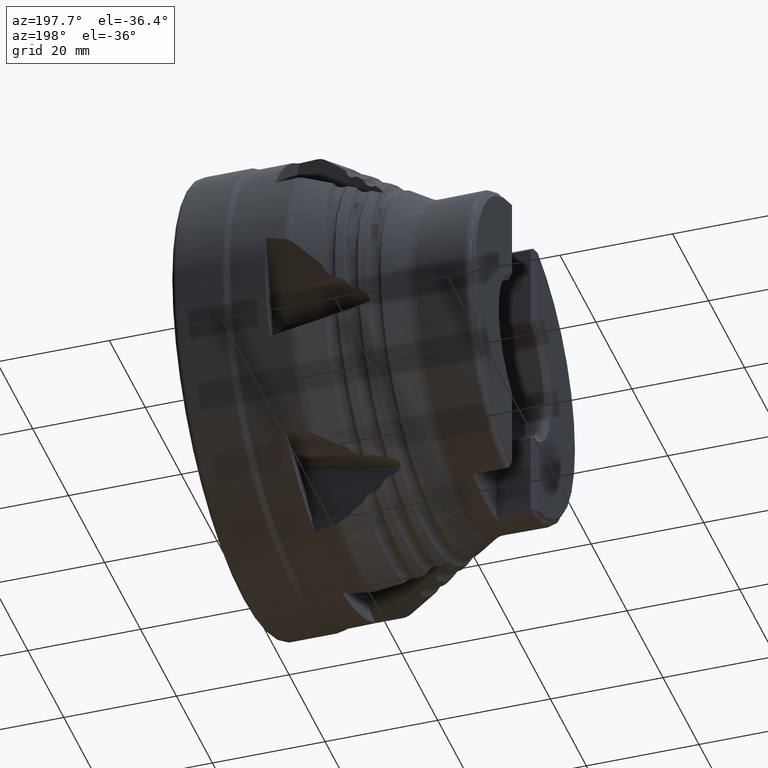
[diagram: clean part render]
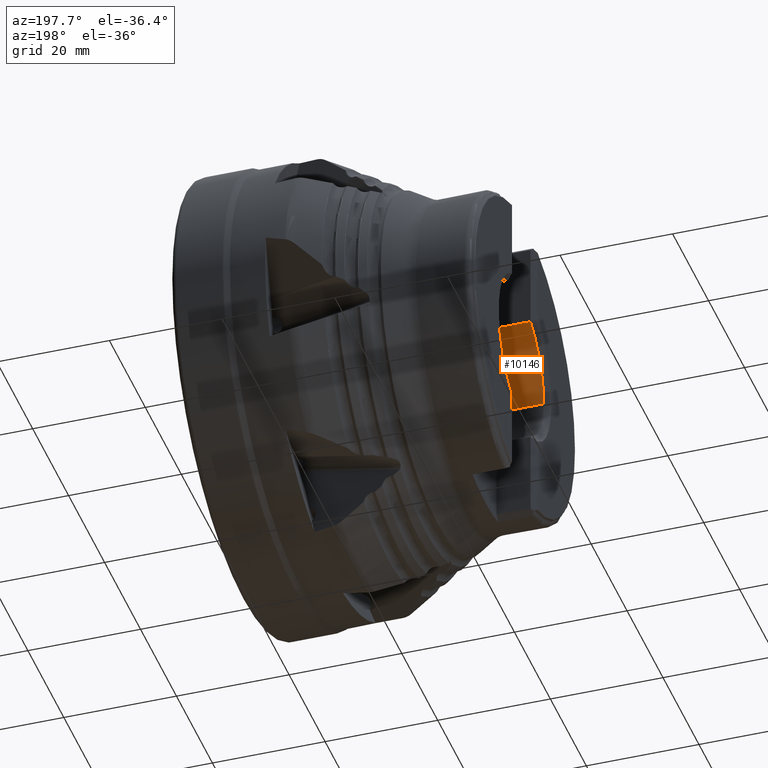
[diagram: same view with one face highlighted and labeled with its STEP entity id]
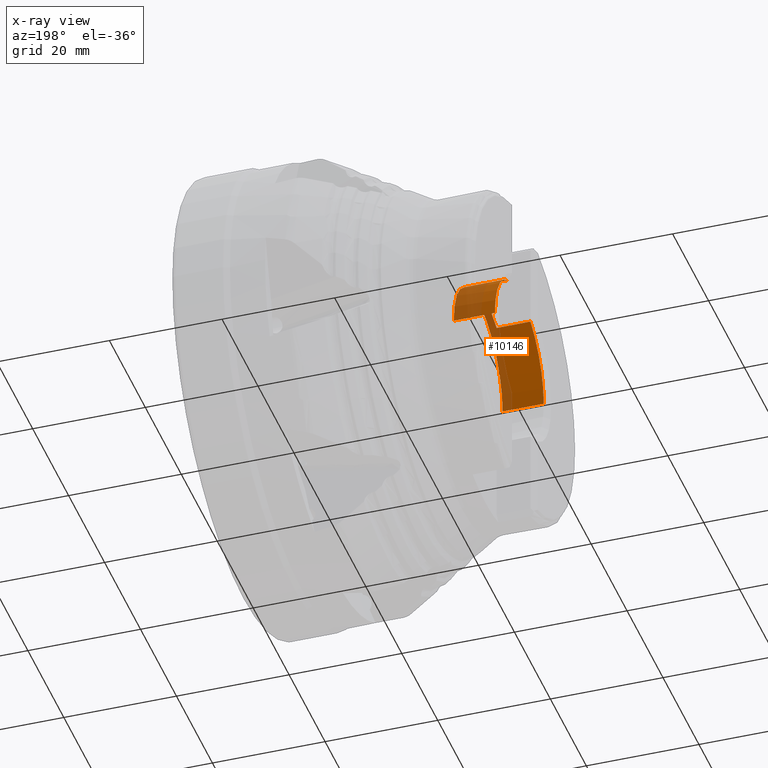
[diagram: x-ray of the same camera — body ghosted, the highlighted face saturated]
A machine part, auxiliary view. The second image highlights one B-rep face of the part: STEP entity #10146.
The next image is the same camera in x-ray: the body ghosted, the highlighted face saturated — about 35% of this face is hidden behind the body in this view.
In plain terms, the highlighted cylindrical surface (partial cylindrical patch) has radius 13.575 mm, axis along (1, 0, -0).
Its self-contained STEP definition (entity closure, byte-faithful):
#294 = DIRECTION ( 'NONE',  ( -1.224606353822377300E-016, 1.000000000000000000, 0.0000000000000000000 ) ) ;
#303 = DIRECTION ( 'NONE',  ( 1.000000000000000000, 1.224606353822377300E-016, -0.0000000000000000000 ) ) ;
#304 = CARTESIAN_POINT ( 'NONE',  ( 0.0000000000000000000, 0.0000000000000000000, 0.0000000000000000000 ) ) ;
#1101 = CARTESIAN_POINT ( 'NONE',  ( -1.662403125313877100E-015, 13.57499999999999900, 0.0000000000000000000 ) ) ;
#1128 = DIRECTION ( 'NONE',  ( 1.000000000000000000, 1.224606353822377300E-016, -0.0000000000000000000 ) ) ;
#1133 = CARTESIAN_POINT ( 'NONE',  ( -47.24999999999995700, -5.786265021810727800E-015, 0.0000000000000000000 ) ) ;
#1144 = DIRECTION ( 'NONE',  ( 0.0000000000000000000, 1.000000000000000000, 0.0000000000000000000 ) ) ;
#1169 = DIRECTION ( 'NONE',  ( 1.000000000000000000, 1.224606353822377300E-016, -0.0000000000000000000 ) ) ;
#1192 = DIRECTION ( 'NONE',  ( 1.000000000000000000, 1.224606353822377300E-016, -0.0000000000000000000 ) ) ;
#1199 = CARTESIAN_POINT ( 'NONE',  ( 1.662403125313877100E-015, -13.57499999999999900, 1.662458029842531900E-015 ) ) ;
#2307 = VERTEX_POINT ( 'NONE', #2373 ) ;
#2352 = VERTEX_POINT ( 'NONE', #2398 ) ;
#2373 = CARTESIAN_POINT ( 'NONE',  ( -47.24999999999995700, -6.200000000000002000, 12.07644918839970800 ) ) ;
#2398 = CARTESIAN_POINT ( 'NONE',  ( -39.94999999999996000, -13.57500000000000300, 1.662458029842531900E-015 ) ) ;
#4784 = EDGE_LOOP ( 'NONE', ( #6269, #6318, #6294, #6152, #6217, #6183, #6295, #6360 ) ) ;
#4964 = VECTOR ( 'NONE', #1169, 1000.000000000000000 ) ;
#4972 = VECTOR ( 'NONE', #1128, 1000.000000000000000 ) ;
#4975 = LINE ( 'NONE', #1199, #4972 ) ;
#4978 = LINE ( 'NONE', #1101, #4964 ) ;
#4989 = CIRCLE ( 'NONE', #8004, 13.57499999999999900 ) ;
#5830 = AXIS2_PLACEMENT_3D ( 'NONE', #12097, #12098, #12099 ) ;
#5837 = AXIS2_PLACEMENT_3D ( 'NONE', #12160, #12161, #12162 ) ;
#5838 = AXIS2_PLACEMENT_3D ( 'NONE', #12194, #12198, #12199 ) ;
#5993 = AXIS2_PLACEMENT_3D ( 'NONE', #304, #303, #294 ) ;
#6152 = ORIENTED_EDGE ( 'NONE', *, *, #9850, .T. ) ;
#6183 = ORIENTED_EDGE ( 'NONE', *, *, #9833, .F. ) ;
#6217 = ORIENTED_EDGE ( 'NONE', *, *, #9855, .T. ) ;
#6269 = ORIENTED_EDGE ( 'NONE', *, *, #7511, .F. ) ;
#6294 = ORIENTED_EDGE ( 'NONE', *, *, #9860, .T. ) ;
#6295 = ORIENTED_EDGE ( 'NONE', *, *, #7513, .T. ) ;
#6318 = ORIENTED_EDGE ( 'NONE', *, *, #7519, .F. ) ;
#6360 = ORIENTED_EDGE ( 'NONE', *, *, #9861, .T. ) ;
#6429 = CARTESIAN_POINT ( 'NONE',  ( -41.25000000000008500, 6.200000000000002000, 12.07644918839970300 ) ) ;
#6471 = CARTESIAN_POINT ( 'NONE',  ( -41.25000000000008500, -6.200000000000001100, 12.07644918839970800 ) ) ;
#6523 = CARTESIAN_POINT ( 'NONE',  ( -39.94999999999996000, 13.57499999999999400, 0.0000000000000000000 ) ) ;
#6549 = CARTESIAN_POINT ( 'NONE',  ( -47.24999999999995700, -13.57500000000000300, 0.0000000000000000000 ) ) ;
#6554 = CARTESIAN_POINT ( 'NONE',  ( -47.24999999999995700, 13.57499999999999400, 0.0000000000000000000 ) ) ;
#6800 = CARTESIAN_POINT ( 'NONE',  ( -47.24999999999995700, 6.200000000000002000, 12.07644918839970300 ) ) ;
#7011 = VERTEX_POINT ( 'NONE', #6471 ) ;
#7062 = VERTEX_POINT ( 'NONE', #6800 ) ;
#7065 = VERTEX_POINT ( 'NONE', #6429 ) ;
#7253 = VERTEX_POINT ( 'NONE', #6523 ) ;
#7271 = VERTEX_POINT ( 'NONE', #6549 ) ;
#7275 = VERTEX_POINT ( 'NONE', #6554 ) ;
#7511 = EDGE_CURVE ( 'NONE', #7271, #2352, #4975, .T. ) ;
#7513 = EDGE_CURVE ( 'NONE', #7275, #7253, #4978, .T. ) ;
#7519 = EDGE_CURVE ( 'NONE', #2307, #7271, #4989, .T. ) ;
#8004 = AXIS2_PLACEMENT_3D ( 'NONE', #1133, #1192, #1144 ) ;
#9833 = EDGE_CURVE ( 'NONE', #7275, #7062, #10998, .T. ) ;
#9850 = EDGE_CURVE ( 'NONE', #7011, #7065, #11013, .T. ) ;
#9855 = EDGE_CURVE ( 'NONE', #7065, #7062, #11008, .T. ) ;
#9860 = EDGE_CURVE ( 'NONE', #2307, #7011, #11019, .T. ) ;
#9861 = EDGE_CURVE ( 'NONE', #7253, #2352, #11023, .T. ) ;
#10146 = ADVANCED_FACE ( 'NONE', ( #11314 ), #11315, .F. ) ;
#10998 = CIRCLE ( 'NONE', #5830, 13.57499999999999900 ) ;
#11008 = LINE ( 'NONE', #12181, #11012 ) ;
#11012 = VECTOR ( 'NONE', #12182, 1000.000000000000000 ) ;
#11013 = CIRCLE ( 'NONE', #5837, 13.57499999999999900 ) ;
#11016 = VECTOR ( 'NONE', #12196, 1000.000000000000000 ) ;
#11019 = LINE ( 'NONE', #12195, #11016 ) ;
#11023 = CIRCLE ( 'NONE', #5838, 13.57499999999999900 ) ;
#11314 = FACE_OUTER_BOUND ( 'NONE', #4784, .T. ) ;
#11315 = CYLINDRICAL_SURFACE ( 'NONE', #5993, 13.57499999999999900 ) ;
#12097 = CARTESIAN_POINT ( 'NONE',  ( -47.24999999999995700, -5.786265021810727800E-015, 0.0000000000000000000 ) ) ;
#12098 = DIRECTION ( 'NONE',  ( 1.000000000000000000, 1.224606353822377300E-016, -0.0000000000000000000 ) ) ;
#12099 = DIRECTION ( 'NONE',  ( 0.0000000000000000000, 1.000000000000000000, 0.0000000000000000000 ) ) ;
#12160 = CARTESIAN_POINT ( 'NONE',  ( -41.25000000000008500, -5.051501209517316400E-015, 0.0000000000000000000 ) ) ;
#12161 = DIRECTION ( 'NONE',  ( -1.000000000000000000, 0.0000000000000000000, -0.0000000000000000000 ) ) ;
#12162 = DIRECTION ( 'NONE',  ( 0.0000000000000000000, 1.776356839400250500E-015, -1.000000000000000000 ) ) ;
#12181 = CARTESIAN_POINT ( 'NONE',  ( -7.592559393698748500E-016, 6.200000000000007300, 12.07644918839970300 ) ) ;
#12182 = DIRECTION ( 'NONE',  ( -1.000000000000000000, -1.224606353822377300E-016, 0.0000000000000000000 ) ) ;
#12194 = CARTESIAN_POINT ( 'NONE',  ( -39.94999999999996000, -4.892302383520391800E-015, 0.0000000000000000000 ) ) ;
#12195 = CARTESIAN_POINT ( 'NONE',  ( 7.592559393698733700E-016, -6.199999999999995700, 12.07644918839970800 ) ) ;
#12196 = DIRECTION ( 'NONE',  ( 1.000000000000000000, 1.224606353822377300E-016, -0.0000000000000000000 ) ) ;
#12198 = DIRECTION ( 'NONE',  ( 1.000000000000000000, 1.224606353822377300E-016, -0.0000000000000000000 ) ) ;
#12199 = DIRECTION ( 'NONE',  ( 0.0000000000000000000, 1.000000000000000000, 0.0000000000000000000 ) ) ;